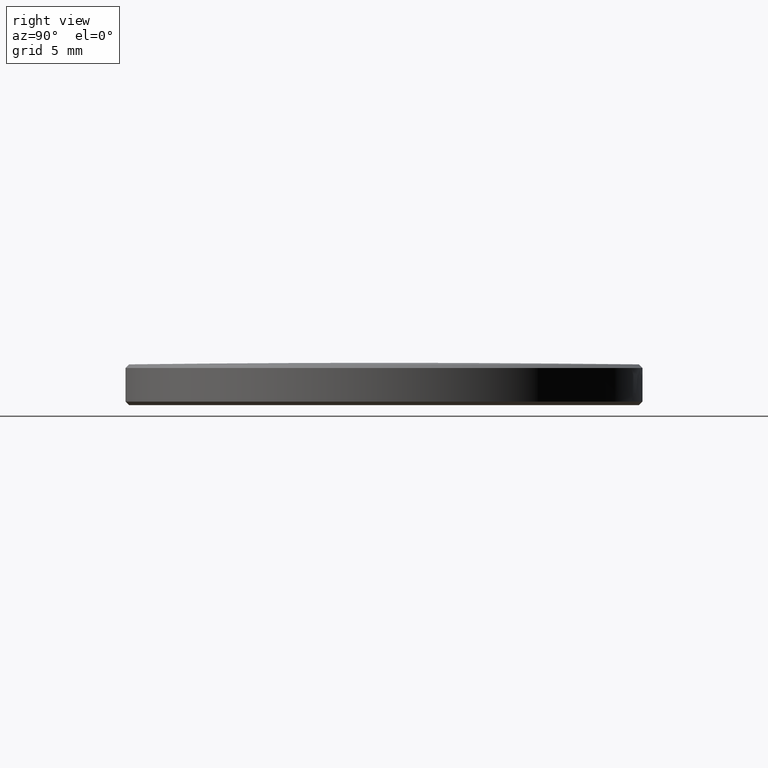
[diagram: clean part render]
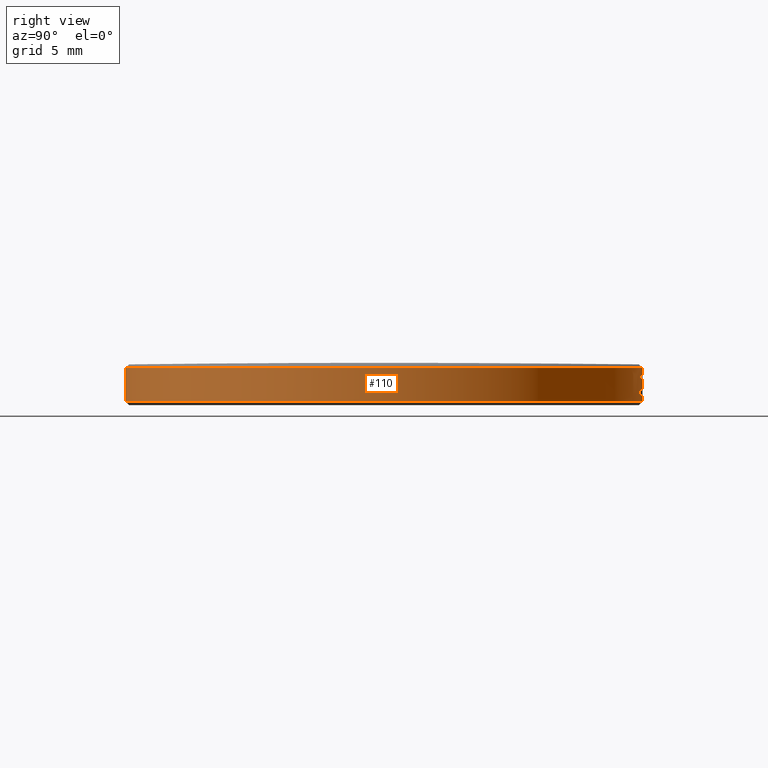
[diagram: same view with one face highlighted and labeled with its STEP entity id]
A machine part, right view. The second image highlights one B-rep face of the part: STEP entity #110.
In plain terms, the highlighted cylindrical surface (partial cylindrical patch) has radius 12.7 mm, axis along (-0, -0, 1).
Its self-contained STEP definition (entity closure, byte-faithful):
#1 = CARTESIAN_POINT ( 'NONE',  ( 0.05897571767777144702, 0.4965096824074952675, -0.02171647052790149496 ) ) ;
#5 = CARTESIAN_POINT ( 'NONE',  ( 0.04195219738416715305, 0.4982369046293538828, -0.02171647052790150537 ) ) ;
#7 = CARTESIAN_POINT ( 'NONE',  ( 0.02553004096687961494, 0.4993478174687158710, -0.0005765629198519137957 ) ) ;
#9 = VERTEX_POINT ( 'NONE', #603 ) ;
#17 = AXIS2_PLACEMENT_3D ( 'NONE', #1784, #2203, #2648 ) ;
#28 = CARTESIAN_POINT ( 'NONE',  ( 0.03620486434838772472, 0.4986874882090844285, 0.007936058931558430396 ) ) ;
#36 = ORIENTED_EDGE ( 'NONE', *, *, #544, .T. ) ;
#37 = VERTEX_POINT ( 'NONE', #1216 ) ;
#39 = B_SPLINE_CURVE_WITH_KNOTS ( 'NONE', 3,
 ( #857, #2132, #1474, #624, #2334, #1024, #614, #376, #2518, #1465, #397, #2326, #1040, #2533, #161 ),
 .UNSPECIFIED., .F., .F.,
 ( 4, 1, 1, 1, 2, 2, 2, 2, 4 ),
 ( 0.0000000000000000000, 0.2499999999999961142, 0.3749999999999944489, 0.4374999999999940603, 0.4687499999999944489, 0.4999999999999947820, 0.6249999999999962252, 0.7499999999999977796, 1.000000000000000000 ),
 .UNSPECIFIED. ) ;
#42 = DIRECTION ( 'NONE',  ( 0.2120162504334271725, 0.9772661405943369184, 1.792775245842172799E-16 ) ) ;
#46 = ORIENTED_EDGE ( 'NONE', *, *, #560, .T. ) ;
#47 = CARTESIAN_POINT ( 'NONE',  ( 0.03253846842176870424, 0.4989410987498059113, 0.01332512531627219089 ) ) ;
#59 = B_SPLINE_CURVE_WITH_KNOTS ( 'NONE', 3,
 ( #929, #2620, #2118, #2344, #764, #174, #297, #1574, #1975, #582 ),
 .UNSPECIFIED., .F., .F.,
 ( 4, 2, 2, 2, 4 ),
 ( 0.0000000000000000000, 0.1893146392059177341, 0.2839719588088766011, 0.3786292784118354682, 0.7572585568236712694 ),
 .UNSPECIFIED. ) ;
#63 = FACE_BOUND ( 'NONE', #1746, .T. ) ;
#70 = EDGE_CURVE ( 'NONE', #251, #610, #294, .T. ) ;
#72 = CARTESIAN_POINT ( 'NONE',  ( 0.1030083598580676663, 0.4892766405425549858, -0.01341986262191859937 ) ) ;
#75 = CARTESIAN_POINT ( 'NONE',  ( 0.009333141817906051574, 0.4999128848747618203, -0.002530564745316026681 ) ) ;
#99 = CARTESIAN_POINT ( 'NONE',  ( 0.006026789751810012093, 0.4999644538465128352, -0.01918418460181730775 ) ) ;
#101 = CARTESIAN_POINT ( 'NONE',  ( 0.04059839222468464293, 0.4983490594575665233, -0.01611479940862103888 ) ) ;
#106 = ORIENTED_EDGE ( 'NONE', *, *, #342, .T. ) ;
#110 = ADVANCED_FACE ( 'NONE', ( #1223, #63, #521, #2415, #1354 ), #1594, .T. ) ;
#113 = CARTESIAN_POINT ( 'NONE',  ( 0.04087030235202229050, 0.4983268538286141358, 0.01050106465941766549 ) ) ;
#120 = DIRECTION ( 'NONE',  ( -0.0000000000000000000, -1.836970198721029688E-16, 1.000000000000000000 ) ) ;
#140 = LINE ( 'NONE', #2756, #664 ) ;
#146 = CARTESIAN_POINT ( 'NONE',  ( 0.08988818067285703206, 0.4918537536456581427, 0.01872949301376516940 ) ) ;
#156 = CARTESIAN_POINT ( 'NONE',  ( 0.05382345581383767702, 0.4970945942215182489, 0.01872949301376517287 ) ) ;
#158 = EDGE_CURVE ( 'NONE', #159, #2338, #657, .T. ) ;
#159 = VERTEX_POINT ( 'NONE', #1140 ) ;
#161 = CARTESIAN_POINT ( 'NONE',  ( 0.03531218405139294886, 0.4987514908825040894, -0.01653109058666217199 ) ) ;
#164 = CARTESIAN_POINT ( 'NONE',  ( 0.07934149889197734951, 0.4936938112673905921, -0.008234482680679279867 ) ) ;
#171 = CARTESIAN_POINT ( 'NONE',  ( 0.03952768365956028929, 0.4984352059452795691, -0.01420834229530199347 ) ) ;
#174 = CARTESIAN_POINT ( 'NONE',  ( 0.003637648741234411360, 0.4999867905026685322, -0.01380340561682351537 ) ) ;
#176 = CARTESIAN_POINT ( 'NONE',  ( 0.01618928721569317178, 0.4997378623885671001, 0.005721306570640861608 ) ) ;
#178 = AXIS2_PLACEMENT_3D ( 'NONE', #524, #2194, #42 ) ;
#179 = EDGE_CURVE ( 'NONE', #1644, #1099, #372, .T. ) ;
#181 = CARTESIAN_POINT ( 'NONE',  ( 0.04127292221850957510, 0.4982936535379370868, -0.01773502390314164040 ) ) ;
#188 = VERTEX_POINT ( 'NONE', #1157 ) ;
#196 = CARTESIAN_POINT ( 'NONE',  ( 0.1311917670490320154, 0.4824818341228532259, -0.01704962858078610741 ) ) ;
#197 = CARTESIAN_POINT ( 'NONE',  ( 0.01796662306187523858, 0.4996774677106256557, 0.0007429942987340864809 ) ) ;
#200 = DIRECTION ( 'NONE',  ( 0.0000000000000000000, 0.0000000000000000000, 1.000000000000000000 ) ) ;
#206 = CARTESIAN_POINT ( 'NONE',  ( 0.02309293371789211680, 0.4994670455884244187, 0.01785726032407731687 ) ) ;
#208 = CIRCLE ( 'NONE', #2423, 0.4999999999999999445 ) ;
#210 = CARTESIAN_POINT ( 'NONE',  ( 0.04141124247600005276, 0.4982821580155102348, -0.01811911319366671380 ) ) ;
#213 = AXIS2_PLACEMENT_3D ( 'NONE', #1954, #1730, #2593 ) ;
#229 = CARTESIAN_POINT ( 'NONE',  ( 0.02692039112504342538, 0.4992751644616937878, -0.001969485479971310946 ) ) ;
#230 = CARTESIAN_POINT ( 'NONE',  ( 0.1119149328904406326, 0.4873141161469962679, -0.02171647052790149496 ) ) ;
#250 = VERTEX_POINT ( 'NONE', #2280 ) ;
#251 = VERTEX_POINT ( 'NONE', #562 ) ;
#253 = CARTESIAN_POINT ( 'NONE',  ( 0.03485908045103085218, 0.4987839151615880984, 0.01150440167166316176 ) ) ;
#257 = ORIENTED_EDGE ( 'NONE', *, *, #1863, .T. ) ;
#258 = DIRECTION ( 'NONE',  ( -0.0000000000000000000, -1.836970198721029688E-16, 1.000000000000000000 ) ) ;
#260 = VERTEX_POINT ( 'NONE', #1829 ) ;
#270 = CARTESIAN_POINT ( 'NONE',  ( 0.03071643536927968349, 0.4990556570204718323, 0.01386097322092220627 ) ) ;
#275 = VECTOR ( 'NONE', #284, 39.37007874015748143 ) ;
#276 = CARTESIAN_POINT ( 'NONE',  ( 0.02125365211503583637, 0.4995480780383135810, 0.007516108890835152684 ) ) ;
#280 = CARTESIAN_POINT ( 'NONE',  ( 0.03585701794586323987, 0.4987126249574139747, 0.009489350774225238302 ) ) ;
#284 = DIRECTION ( 'NONE',  ( -0.0000000000000000000, -1.836970198721029688E-16, 1.000000000000000000 ) ) ;
#294 = B_SPLINE_CURVE_WITH_KNOTS ( 'NONE', 3,
 ( #2121, #1479, #176, #1893, #1908, #2312, #197, #860, #853, #1690, #2760, #628, #2319, #1042, #2538, #1709, #644, #2130, #1061, #1720 ),
 .UNSPECIFIED., .F., .F.,
 ( 4, 2, 2, 1, 1, 2, 2, 1, 2, 2, 1, 4 ),
 ( 0.0000000000000000000, 0.1250000000000000555, 0.2500000000000001110, 0.3750000000000001665, 0.4375000000000000555, 0.4687500000000001665, 0.5000000000000002220, 0.6250000000000016653, 0.6562500000000016653, 0.6875000000000016653, 0.7500000000000013323, 1.000000000000000000 ),
 .UNSPECIFIED. ) ;
#297 = CARTESIAN_POINT ( 'NONE',  ( 0.003466348269066419491, 0.4999880205411793010, -0.01412716194409355079 ) ) ;
#298 = VERTEX_POINT ( 'NONE', #541 ) ;
#306 = DIRECTION ( 'NONE',  ( -0.0000000000000000000, -1.836970198721029688E-16, 1.000000000000000000 ) ) ;
#308 = CARTESIAN_POINT ( 'NONE',  ( 0.02571284738722807994, 0.4993384466077257500, 0.01361805468664486693 ) ) ;
#322 = CARTESIAN_POINT ( 'NONE',  ( 0.004666774186689271083, 0.4999782207443544957, -0.01030863465717499552 ) ) ;
#334 = CARTESIAN_POINT ( 'NONE',  ( 0.03902480764328158935, 0.4984749813805748331, -0.01344807295894865848 ) ) ;
#342 = EDGE_CURVE ( 'NONE', #2338, #2714, #1601, .T. ) ;
#343 = CARTESIAN_POINT ( 'NONE',  ( 0.02850412759699064852, 0.4991868535027083609, 0.01872949301376517633 ) ) ;
#345 = VECTOR ( 'NONE', #200, 39.37007874015748143 ) ;
#348 = CARTESIAN_POINT ( 'NONE',  ( 0.08154193280571284119, 0.4933084900704287623, -0.01756816657491004977 ) ) ;
#356 = EDGE_CURVE ( 'NONE', #2171, #1644, #2576, .T. ) ;
#369 = DIRECTION ( 'NONE',  ( -0.0000000000000000000, -1.836970198721029688E-16, 1.000000000000000000 ) ) ;
#371 = EDGE_CURVE ( 'NONE', #260, #483, #439, .T. ) ;
#372 = LINE ( 'NONE', #1984, #2796 ) ;
#376 = CARTESIAN_POINT ( 'NONE',  ( 0.03139694540498809416, 0.4990132721155449702, -0.01245635810316374562 ) ) ;
#382 = ORIENTED_EDGE ( 'NONE', *, *, #2737, .F. ) ;
#384 = CARTESIAN_POINT ( 'NONE',  ( 0.03400539516490980879, 0.4988428406831130757, 0.01788933683798372629 ) ) ;
#390 = EDGE_LOOP ( 'NONE', ( #382, #1686, #1884, #1743, #1521, #2600 ) ) ;
#394 = ORIENTED_EDGE ( 'NONE', *, *, #1906, .T. ) ;
#395 = CARTESIAN_POINT ( 'NONE',  ( 0.05897571767777155111, 0.4965096824074952120, 0.009800916927443729249 ) ) ;
#397 = CARTESIAN_POINT ( 'NONE',  ( 0.03306883204860817244, 0.4989053695245092568, -0.01394874963763126363 ) ) ;
#406 = CIRCLE ( 'NONE', #1154, 0.5000000000000000000 ) ;
#408 = CARTESIAN_POINT ( 'NONE',  ( 0.03067113568736400120, 0.4990604806407766825, -0.005375296376640254468 ) ) ;
#422 = CARTESIAN_POINT ( 'NONE',  ( 0.05839822083495212202, 0.4965780450053812745, 0.01660011804395156859 ) ) ;
#424 = CARTESIAN_POINT ( 'NONE',  ( 0.01555363028883999590, 0.4997580260334376079, -0.01653109058666217199 ) ) ;
#425 = EDGE_CURVE ( 'NONE', #429, #1261, #2316, .T. ) ;
#429 = VERTEX_POINT ( 'NONE', #727 ) ;
#432 = CARTESIAN_POINT ( 'NONE',  ( 0.007950614753587817093, 0.4999386960141598557, 0.004383275176336394983 ) ) ;
#437 = CARTESIAN_POINT ( 'NONE',  ( 0.02129139088581408906, 0.4995464724136687851, 0.006036876676164090912 ) ) ;
#439 = CIRCLE ( 'NONE', #2497, 0.5000000000000000000 ) ;
#441 = CARTESIAN_POINT ( 'NONE',  ( 0.01763882810688738659, 0.4996891882123979389, 0.01357182136717241007 ) ) ;
#447 = CIRCLE ( 'NONE', #1076, 0.5000000000000000000 ) ;
#448 = CARTESIAN_POINT ( 'NONE',  ( 0.02286712941416273182, 0.4994768281116746533, 0.002641368734649433576 ) ) ;
#453 = CARTESIAN_POINT ( 'NONE',  ( 0.005185286991503857204, 0.4999731120758552083, 0.01821095501964123745 ) ) ;
#459 = CARTESIAN_POINT ( 'NONE',  ( 0.02557383107380910292, 0.4993455621027508284, -0.0006213162569131314063 ) ) ;
#460 = CARTESIAN_POINT ( 'NONE',  ( 0.03541017336920208869, 0.4987446722202744653, 0.01068373456944802721 ) ) ;
#463 = EDGE_CURVE ( 'NONE', #775, #1610, #1034, .T. ) ;
#478 = CARTESIAN_POINT ( 'NONE',  ( 0.03606074021346015318, 0.4986979317014044732, 0.008770303305639036776 ) ) ;
#483 = VERTEX_POINT ( 'NONE', #1248 ) ;
#487 = CARTESIAN_POINT ( 'NONE',  ( 0.03130858157602859487, 0.4990188708520985061, 0.01372449264807138782 ) ) ;
#493 = VERTEX_POINT ( 'NONE', #2525 ) ;
#496 = CARTESIAN_POINT ( 'NONE',  ( 0.03626578605811315442, 0.4986830584264790311, 0.006803119148914753625 ) ) ;
#500 = CARTESIAN_POINT ( 'NONE',  ( 0.02200779094752184153, 0.4995154563388037872, 0.01058979682675512297 ) ) ;
#507 = ORIENTED_EDGE ( 'NONE', *, *, #1921, .T. ) ;
#513 = CARTESIAN_POINT ( 'NONE',  ( 0.02315843335550602997, 0.4994635147813105136, 0.01206395665835536916 ) ) ;
#515 = EDGE_CURVE ( 'NONE', #1074, #2171, #1001, .T. ) ;
#521 = FACE_BOUND ( 'NONE', #2233, .T. ) ;
#523 = CARTESIAN_POINT ( 'NONE',  ( 0.08988818067285703206, 0.4918537536456581427, 0.01872949301376516940 ) ) ;
#524 = CARTESIAN_POINT ( 'NONE',  ( 0.0000000000000000000, 1.158302536164765909E-17, -0.02171647052790158516 ) ) ;
#526 = AXIS2_PLACEMENT_3D ( 'NONE', #691, #898, #706 ) ;
#527 = CARTESIAN_POINT ( 'NONE',  ( 0.02755022889866918373, 0.4992415521829174918, 0.01403679780064001972 ) ) ;
#536 = DIRECTION ( 'NONE',  ( 0.2251720733611321246, 0.9743190121198749276, 1.792775245842172799E-16 ) ) ;
#541 = CARTESIAN_POINT ( 'NONE',  ( 0.1311917670490318766, 0.4824818341228532814, 0.01872949301376516940 ) ) ;
#542 = CARTESIAN_POINT ( 'NONE',  ( 6.123233995736766036E-17, 0.5000000000000000000, -0.01713186965860287458 ) ) ;
#544 = EDGE_CURVE ( 'NONE', #1222, #1074, #2022, .T. ) ;
#555 = B_SPLINE_CURVE_WITH_KNOTS ( 'NONE', 3,
 ( #2480, #348, #1433, #2074 ),
 .UNSPECIFIED., .F., .F.,
 ( 4, 4 ),
 ( 0.0000000000000000000, 1.000000000000000000 ),
 .UNSPECIFIED. ) ;
#558 = CARTESIAN_POINT ( 'NONE',  ( 0.03869399996700029210, 0.4985019798342959496, 0.01483736603731238522 ) ) ;
#560 = EDGE_CURVE ( 'NONE', #2718, #2136, #1439, .T. ) ;
#562 = CARTESIAN_POINT ( 'NONE',  ( 0.01607190888049788227, 0.4997416269883238060, 0.007564721827784269027 ) ) ;
#570 = CIRCLE ( 'NONE', #1541, 0.5000000000000000000 ) ;
#576 = B_SPLINE_CURVE_WITH_KNOTS ( 'NONE', 3,
 ( #2252, #2703, #1628, #322 ),
 .UNSPECIFIED., .F., .F.,
 ( 4, 4 ),
 ( 0.0000000000000000000, 1.000000000000000000 ),
 .UNSPECIFIED. ) ;
#577 = EDGE_LOOP ( 'NONE', ( #1677, #845, #2722, #2532, #2650, #36, #2134 ) ) ;
#582 = CARTESIAN_POINT ( 'NONE',  ( 6.123233995736766036E-17, 0.5000000000000000000, -0.01713186965860287458 ) ) ;
#603 = CARTESIAN_POINT ( 'NONE',  ( 0.004148256362634469667, 0.4999827916730233413, -0.003049102739439950825 ) ) ;
#610 = VERTEX_POINT ( 'NONE', #2625 ) ;
#614 = CARTESIAN_POINT ( 'NONE',  ( 0.03137874394350781415, 0.4990144079482840556, -0.01244070581936791361 ) ) ;
#622 = CARTESIAN_POINT ( 'NONE',  ( 0.06041557456715102026, 0.4963386553431433090, 0.008403776709831259698 ) ) ;
#623 = CARTESIAN_POINT ( 'NONE',  ( 0.03778325844554159679, 0.4985704070010033018, -0.01186477321680292664 ) ) ;
#624 = CARTESIAN_POINT ( 'NONE',  ( 0.03049907241213575121, 0.4990691061392188987, -0.01168559308212298656 ) ) ;
#625 = CARTESIAN_POINT ( 'NONE',  ( 0.07404769955824404282, 0.4944865399483913126, -0.02171647052790149496 ) ) ;
#628 = CARTESIAN_POINT ( 'NONE',  ( 0.02029166545760088466, 0.4995882953359023215, -0.002442174921790586217 ) ) ;
#644 = CARTESIAN_POINT ( 'NONE',  ( 0.02262464216695552963, 0.4994879193256914762, -0.004863119826646492526 ) ) ;
#647 = CARTESIAN_POINT ( 'NONE',  ( 0.1014616635550345397, 0.4896265756255398505, 0.005247505166542948234 ) ) ;
#651 = CARTESIAN_POINT ( 'NONE',  ( 0.03971295080925892756, 0.4984233833919965995, 0.007148811144997369721 ) ) ;
#657 = CIRCLE ( 'NONE', #2092, 0.4999999999999998890 ) ;
#664 = VECTOR ( 'NONE', #1493, 39.37007874015748143 ) ;
#666 = CARTESIAN_POINT ( 'NONE',  ( 0.009333141817906051574, 0.4999128848747618203, -0.002530564745316026681 ) ) ;
#675 = CARTESIAN_POINT ( 'NONE',  ( 0.1066979190084305362, 0.4885122381367921762, -0.008234482680679272928 ) ) ;
#683 = AXIS2_PLACEMENT_3D ( 'NONE', #1659, #1462, #2719 ) ;
#691 = CARTESIAN_POINT ( 'NONE',  ( 0.0000000000000000000, 1.383674879621512820E-17, -0.03398516947651054887 ) ) ;
#692 = EDGE_CURVE ( 'NONE', #1993, #9, #2726, .T. ) ;
#693 = CARTESIAN_POINT ( 'NONE',  ( 0.02472791702604475866, 0.4993885691124710924, 0.0002643765598048721400 ) ) ;
#700 = DIRECTION ( 'NONE',  ( 0.0000000000000000000, 0.0000000000000000000, -1.000000000000000000 ) ) ;
#706 = DIRECTION ( 'NONE',  ( 0.0000000000000000000, -1.000000000000000000, -1.878145495644180839E-16 ) ) ;
#711 = CARTESIAN_POINT ( 'NONE',  ( 0.03337995237472035637, 0.4988850852583939788, 0.01284785574264219431 ) ) ;
#721 = ORIENTED_EDGE ( 'NONE', *, *, #1334, .T. ) ;
#727 = CARTESIAN_POINT ( 'NONE',  ( 0.04141124247600005276, 0.4982821580155102348, -0.01811911319366671380 ) ) ;
#743 = CARTESIAN_POINT ( 'NONE',  ( 6.123233995736766036E-17, 0.5000000000000000000, 0.04094488188976387610 ) ) ;
#746 = ORIENTED_EDGE ( 'NONE', *, *, #371, .F. ) ;
#749 = CARTESIAN_POINT ( 'NONE',  ( 0.02861737257802509163, 0.4991803742002789424, 0.01406265106664978878 ) ) ;
#750 = ORIENTED_EDGE ( 'NONE', *, *, #1484, .T. ) ;
#752 = B_SPLINE_CURVE_WITH_KNOTS ( 'NONE', 3,
 ( #395, #622, #1246, #2314, #2158, #2772 ),
 .UNSPECIFIED., .F., .F.,
 ( 4, 2, 4 ),
 ( 0.0000000000000000000, 0.5000000000000000000, 1.000000000000000000 ),
 .UNSPECIFIED. ) ;
#759 = CARTESIAN_POINT ( 'NONE',  ( 0.02223942344522563189, 0.4995052413053057694, 0.01096875718778107106 ) ) ;
#761 = LINE ( 'NONE', #1, #345 ) ;
#764 = CARTESIAN_POINT ( 'NONE',  ( 0.003942044490540314548, 0.4999844832099876180, -0.01312052901238786561 ) ) ;
#768 = CARTESIAN_POINT ( 'NONE',  ( 0.005876656855238569267, 0.4999684514828007242, -0.002876256741398640175 ) ) ;
#775 = VERTEX_POINT ( 'NONE', #888 ) ;
#782 = CARTESIAN_POINT ( 'NONE',  ( 0.04118798843152824546, 0.4983006629288025402, 0.009061961829742904914 ) ) ;
#789 = CARTESIAN_POINT ( 'NONE',  ( 0.009177082990517917288, 0.4999157849335237880, -0.01414582865751719092 ) ) ;
#791 = VERTEX_POINT ( 'NONE', #2579 ) ;
#794 = CARTESIAN_POINT ( 'NONE',  ( 0.03689313679913702737, 0.4986374021673061208, 0.01637392848351634789 ) ) ;
#799 = CARTESIAN_POINT ( 'NONE',  ( 0.0000000000000000000, 1.158302536164765909E-17, -0.02171647052790158516 ) ) ;
#800 = VERTEX_POINT ( 'NONE', #1111 ) ;
#803 = LINE ( 'NONE', #1131, #2384 ) ;
#822 = VERTEX_POINT ( 'NONE', #2607 ) ;
#835 = DIRECTION ( 'NONE',  ( -0.0000000000000000000, -1.836970198721029688E-16, 1.000000000000000000 ) ) ;
#839 = CARTESIAN_POINT ( 'NONE',  ( 0.02947005417176439337, 0.4991316980150520277, 0.01870944735052014127 ) ) ;
#845 = ORIENTED_EDGE ( 'NONE', *, *, #179, .T. ) ;
#848 = VERTEX_POINT ( 'NONE', #2667 ) ;
#853 = CARTESIAN_POINT ( 'NONE',  ( 0.01924201509310704411, 0.4996296280291436243, -0.001109205975397337812 ) ) ;
#857 = CARTESIAN_POINT ( 'NONE',  ( 0.02728260755614764568, 0.4992551044555650908, -0.009028493984181542101 ) ) ;
#860 = CARTESIAN_POINT ( 'NONE',  ( 0.01882890278187111452, 0.4996454725853811119, -0.0005481874890623160369 ) ) ;
#861 = EDGE_CURVE ( 'NONE', #2052, #37, #2507, .T. ) ;
#866 = CIRCLE ( 'NONE', #526, 0.5000000000000000000 ) ;
#867 = CARTESIAN_POINT ( 'NONE',  ( 0.006567980616312984327, 0.4999587719781724005, 0.01129711509798881838 ) ) ;
#873 = EDGE_CURVE ( 'NONE', #848, #2216, #2477, .T. ) ;
#887 = B_SPLINE_CURVE_WITH_KNOTS ( 'NONE', 3,
 ( #1590, #72, #1831, #2494 ),
 .UNSPECIFIED., .F., .F.,
 ( 4, 4 ),
 ( 0.0000000000000000000, 1.000000000000000000 ),
 .UNSPECIFIED. ) ;
#888 = CARTESIAN_POINT ( 'NONE',  ( 0.04143546538618893271, 0.4982801443046169787, 0.007321657143038677769 ) ) ;
#890 = ORIENTED_EDGE ( 'NONE', *, *, #2024, .T. ) ;
#898 = DIRECTION ( 'NONE',  ( -0.0000000000000000000, -1.836970198721029688E-16, 1.000000000000000000 ) ) ;
#903 = LINE ( 'NONE', #1905, #2584 ) ;
#908 = DIRECTION ( 'NONE',  ( -0.0000000000000000000, -1.836970198721029688E-16, 1.000000000000000000 ) ) ;
#923 = CARTESIAN_POINT ( 'NONE',  ( 0.02861737257802509163, 0.4991803742002789424, 0.01406265106664978878 ) ) ;
#929 = CARTESIAN_POINT ( 'NONE',  ( 0.004666774186689271083, 0.4999782207443544957, -0.01030863465717499552 ) ) ;
#942 = CARTESIAN_POINT ( 'NONE',  ( 0.03211103672720891367, 0.4989678159163212223, -0.006589744980567424811 ) ) ;
#945 = CARTESIAN_POINT ( 'NONE',  ( 0.02383777948038876340, 0.4994315527703733770, 0.01265491506839397720 ) ) ;
#953 = ORIENTED_EDGE ( 'NONE', *, *, #2119, .T. ) ;
#977 = CARTESIAN_POINT ( 'NONE',  ( 0.1015062956179794140, 0.4895880635288358262, -0.009271558668927148972 ) ) ;
#987 = CARTESIAN_POINT ( 'NONE',  ( 0.04114602911119961959, 0.4983041417755268987, -0.01739738047199089824 ) ) ;
#991 = VECTOR ( 'NONE', #700, 39.37007874015748143 ) ;
#994 = CARTESIAN_POINT ( 'NONE',  ( 0.009449406616696598774, 0.4999107053496816833, -0.01321600253971519368 ) ) ;
#1001 = B_SPLINE_CURVE_WITH_KNOTS ( 'NONE', 3,
 ( #2160, #1950, #1091, #1269, #2765, #1913, #2361, #1526, #422, #2551, #1924, #1072, #2774, #1082 ),
 .UNSPECIFIED., .F., .F.,
 ( 4, 2, 2, 2, 2, 2, 4 ),
 ( 0.0000000000000000000, 0.2500000000000002776, 0.5000000000000005551, 0.7500000000000008882, 0.8750000000000004441, 0.9375000000000002220, 1.000000000000000000 ),
 .UNSPECIFIED. ) ;
#1005 = CARTESIAN_POINT ( 'NONE',  ( 0.004939748570046890649, 0.4999769536647054591, -0.02006584520776499847 ) ) ;
#1016 = AXIS2_PLACEMENT_3D ( 'NONE', #2104, #835, #1036 ) ;
#1019 = CARTESIAN_POINT ( 'NONE',  ( 0.003023289364590203265, 0.4999921252972702179, -0.001411026575421898402 ) ) ;
#1021 = EDGE_CURVE ( 'NONE', #2365, #1673, #570, .T. ) ;
#1024 = CARTESIAN_POINT ( 'NONE',  ( 0.03123885554600254813, 0.4990231846473914268, -0.01231966220811542452 ) ) ;
#1034 = B_SPLINE_CURVE_WITH_KNOTS ( 'NONE', 3,
 ( #2466, #1472, #2699, #782, #1426, #1693, #113, #2543, #1631, #558, #794, #1643, #1835, #384, #2053, #2111, #2679, #839, #343 ),
 .UNSPECIFIED., .F., .F.,
 ( 4, 1, 2, 2, 2, 2, 2, 2, 2, 4 ),
 ( 0.0000000000000000000, 0.06249999999999986122, 0.09374999999999970857, 0.1249999999999995559, 0.2499999999999997224, 0.5000000000000006661, 0.6250000000000004441, 0.7500000000000003331, 0.8750000000000001110, 1.000000000000000000 ),
 .UNSPECIFIED. ) ;
#1036 = DIRECTION ( 'NONE',  ( 0.1076469116276753540, 0.9941891884430364978, 1.835460370743176819E-16 ) ) ;
#1039 = ORIENTED_EDGE ( 'NONE', *, *, #1437, .T. ) ;
#1040 = CARTESIAN_POINT ( 'NONE',  ( 0.03405465754054051719, 0.4988391900875184248, -0.01492825536054280880 ) ) ;
#1042 = CARTESIAN_POINT ( 'NONE',  ( 0.02181310563234381203, 0.4995239912977597618, -0.004063054185884403327 ) ) ;
#1044 = ORIENTED_EDGE ( 'NONE', *, *, #1822, .F. ) ;
#1061 = CARTESIAN_POINT ( 'NONE',  ( 0.02561798974720763677, 0.4993460702043515664, -0.007605182084080188386 ) ) ;
#1072 = CARTESIAN_POINT ( 'NONE',  ( 0.05750912442997622998, 0.4966817118929672259, 0.01803540906936071039 ) ) ;
#1074 = VERTEX_POINT ( 'NONE', #1420 ) ;
#1076 = AXIS2_PLACEMENT_3D ( 'NONE', #1600, #306, #536 ) ;
#1082 = CARTESIAN_POINT ( 'NONE',  ( 0.05714092300850921041, 0.4967241839469220266, 0.01872949301376517287 ) ) ;
#1088 = EDGE_CURVE ( 'NONE', #822, #250, #576, .T. ) ;
#1091 = CARTESIAN_POINT ( 'NONE',  ( 0.06574434259342938625, 0.4956596545226124584, 0.009974825549664625979 ) ) ;
#1099 = VERTEX_POINT ( 'NONE', #2242 ) ;
#1111 = CARTESIAN_POINT ( 'NONE',  ( 0.1366871847702164910, 0.4809538579942911340, 0.01872949301376516940 ) ) ;
#1114 = VERTEX_POINT ( 'NONE', #2261 ) ;
#1117 = CARTESIAN_POINT ( 'NONE',  ( 0.02920942771358001760, 0.4991464324363862892, 0.01404898641496462111 ) ) ;
#1121 = CARTESIAN_POINT ( 'NONE',  ( 0.02861737257802509163, 0.4991803742002789424, 0.01406265106664978878 ) ) ;
#1124 = VERTEX_POINT ( 'NONE', #1192 ) ;
#1131 = CARTESIAN_POINT ( 'NONE',  ( 0.01555363028883999590, 0.4997580260334376079, -0.01653109058666217199 ) ) ;
#1132 = CARTESIAN_POINT ( 'NONE',  ( 0.0000000000000000000, 9.296932140583076005E-18, -0.009271558668927228769 ) ) ;
#1138 = EDGE_CURVE ( 'NONE', #1546, #1099, #406, .T. ) ;
#1140 = CARTESIAN_POINT ( 'NONE',  ( 0.09620886670672973429, 0.4906565539835441303, 0.01872949301376516940 ) ) ;
#1143 = CARTESIAN_POINT ( 'NONE',  ( 0.03115471106202863383, 0.4990284883496847179, 0.01376329757553023184 ) ) ;
#1147 = CARTESIAN_POINT ( 'NONE',  ( 0.02125365211503583637, 0.4995480780383135810, 0.007516108890835152684 ) ) ;
#1150 = CARTESIAN_POINT ( 'NONE',  ( 6.123233995736766036E-17, 0.5000000000000000000, 0.04094488188976387610 ) ) ;
#1153 = CIRCLE ( 'NONE', #683, 0.4999999999999999445 ) ;
#1154 = AXIS2_PLACEMENT_3D ( 'NONE', #799, #120, #1647 ) ;
#1157 = CARTESIAN_POINT ( 'NONE',  ( 0.05897571767777155111, 0.4965096824074952120, 0.009800916927443729249 ) ) ;
#1163 = ORIENTED_EDGE ( 'NONE', *, *, #861, .F. ) ;
#1178 = EDGE_CURVE ( 'NONE', #2267, #775, #2043, .T. ) ;
#1182 = VERTEX_POINT ( 'NONE', #542 ) ;
#1188 = EDGE_CURVE ( 'NONE', #2136, #2390, #1792, .T. ) ;
#1192 = CARTESIAN_POINT ( 'NONE',  ( 0.0000000000000000000, -0.5000000000000000000, -0.03398516947651064601 ) ) ;
#1193 = CARTESIAN_POINT ( 'NONE',  ( 0.007789919203375098196, 0.4999400908744559002, -0.01716412934413052288 ) ) ;
#1194 = VERTEX_POINT ( 'NONE', #424 ) ;
#1200 = CARTESIAN_POINT ( 'NONE',  ( 0.04016838740435881711, 0.4983839109533324541, -0.01529625179103126335 ) ) ;
#1205 = CARTESIAN_POINT ( 'NONE',  ( 0.009764464344470777032, 0.4999046537379999156, -0.01161187910653589325 ) ) ;
#1216 = CARTESIAN_POINT ( 'NONE',  ( 6.123233995736766036E-17, 0.5000000000000000000, 0.03099819180653418105 ) ) ;
#1218 = CIRCLE ( 'NONE', #1862, 0.5000000000000000000 ) ;
#1222 = VERTEX_POINT ( 'NONE', #2381 ) ;
#1223 = FACE_BOUND ( 'NONE', #577, .T. ) ;
#1231 = EDGE_CURVE ( 'NONE', #1124, #1114, #866, .T. ) ;
#1246 = CARTESIAN_POINT ( 'NONE',  ( 0.06168742239364859853, 0.4961828795238608647, 0.007454333239505077716 ) ) ;
#1248 = CARTESIAN_POINT ( 'NONE',  ( 0.01555363028883999590, 0.4997580260334376079, -0.02171647052790149149 ) ) ;
#1252 = EDGE_CURVE ( 'NONE', #298, #1847, #1992, .T. ) ;
#1261 = VERTEX_POINT ( 'NONE', #942 ) ;
#1265 = CARTESIAN_POINT ( 'NONE',  ( 0.08002770095699333897, 0.4935540163746396369, -0.02171647052790150537 ) ) ;
#1269 = CARTESIAN_POINT ( 'NONE',  ( 0.06395767023687221053, 0.4958933636603632955, 0.01115265932558395616 ) ) ;
#1272 = VERTEX_POINT ( 'NONE', #1147 ) ;
#1290 = CARTESIAN_POINT ( 'NONE',  ( 5.053215498074302889E-16, 0.5000000000000000000, -0.02201199468813766491 ) ) ;
#1294 = CARTESIAN_POINT ( 'NONE',  ( 0.05714092300850921041, 0.4967241839469220266, 0.01872949301376517287 ) ) ;
#1298 = CARTESIAN_POINT ( 'NONE',  ( 0.01610422840715044004, 0.4997405875782379714, 0.009303139283232860976 ) ) ;
#1304 = EDGE_CURVE ( 'NONE', #1114, #1432, #2488, .T. ) ;
#1306 = CARTESIAN_POINT ( 'NONE',  ( 0.02125365211503583637, 0.4995480780383135810, 0.007516108890835152684 ) ) ;
#1309 = CARTESIAN_POINT ( 'NONE',  ( 0.01855517913494701687, 0.4996571099381273973, 0.01478292622217200827 ) ) ;
#1326 = CARTESIAN_POINT ( 'NONE',  ( 0.02938923552363285549, 0.4991367943253540718, -0.004252957911622759837 ) ) ;
#1328 = DIRECTION ( 'NONE',  ( -0.0000000000000000000, -1.836970198721029688E-16, 1.000000000000000000 ) ) ;
#1332 = DIRECTION ( 'NONE',  ( -0.02799739274719525994, 0.9996079961661767932, 1.835460370743176819E-16 ) ) ;
#1334 = EDGE_CURVE ( 'NONE', #1272, #2759, #2097, .T. ) ;
#1335 = DIRECTION ( 'NONE',  ( 0.03110726057767999181, 0.9995160520668752158, 1.835460370743176819E-16 ) ) ;
#1337 = CARTESIAN_POINT ( 'NONE',  ( 0.03612158295981026529, 0.4986935251426173332, 0.008465719113495369375 ) ) ;
#1354 = FACE_OUTER_BOUND ( 'NONE', #2051, .T. ) ;
#1359 = DIRECTION ( 'NONE',  ( 0.0000000000000000000, 0.0000000000000000000, -1.000000000000000000 ) ) ;
#1361 = B_SPLINE_CURVE_WITH_KNOTS ( 'NONE', 3,
 ( #2048, #768, #2038, #75 ),
 .UNSPECIFIED., .F., .F.,
 ( 4, 4 ),
 ( 0.0000000000000000000, 1.000000000000000000 ),
 .UNSPECIFIED. ) ;
#1376 = CARTESIAN_POINT ( 'NONE',  ( 0.07404769955824404282, 0.4944865399483913126, -0.02171647052790149496 ) ) ;
#1377 = ORIENTED_EDGE ( 'NONE', *, *, #2547, .T. ) ;
#1385 = EDGE_CURVE ( 'NONE', #188, #1222, #752, .T. ) ;
#1386 = CARTESIAN_POINT ( 'NONE',  ( 0.009333141817906051574, 0.4999128848747618203, -0.002530564745316026681 ) ) ;
#1396 = B_SPLINE_CURVE_WITH_KNOTS ( 'NONE', 3,
 ( #230, #675, #647, #1744 ),
 .UNSPECIFIED., .F., .F.,
 ( 4, 4 ),
 ( 0.0000000000000000000, 1.000000000000000000 ),
 .UNSPECIFIED. ) ;
#1401 = B_SPLINE_CURVE_WITH_KNOTS ( 'NONE', 3,
 ( #1719, #408, #1326, #1936, #229, #1945, #1741, #459, #7, #693, #1542, #1759, #448, #2802, #1729, #1962, #437, #1306 ),
 .UNSPECIFIED., .F., .F.,
 ( 4, 2, 1, 1, 2, 2, 1, 1, 2, 2, 4 ),
 ( 0.0000000000000000000, 0.2500000000000018319, 0.3750000000000029976, 0.4375000000000034972, 0.4687500000000034972, 0.5000000000000034417, 0.6250000000000026645, 0.6875000000000021094, 0.7187500000000019984, 0.7500000000000018874, 1.000000000000000000 ),
 .UNSPECIFIED. ) ;
#1403 = CARTESIAN_POINT ( 'NONE',  ( 0.03998195209290206220, 0.4983989030707649537, -0.01496978011143513913 ) ) ;
#1405 = CARTESIAN_POINT ( 'NONE',  ( 0.0000000000000000000, 1.158302536164765909E-17, -0.02171647052790158516 ) ) ;
#1409 = ORIENTED_EDGE ( 'NONE', *, *, #1088, .T. ) ;
#1414 = CARTESIAN_POINT ( 'NONE',  ( 0.04083853566268929453, 0.4983294377401337183, -0.01662905611739543335 ) ) ;
#1420 = CARTESIAN_POINT ( 'NONE',  ( 0.06823343288345441737, 0.4953223179273664178, 0.008618002128348505042 ) ) ;
#1423 = EDGE_CURVE ( 'NONE', #1546, #188, #761, .T. ) ;
#1426 = CARTESIAN_POINT ( 'NONE',  ( 0.04112290094312068961, 0.4983060385790464841, 0.009403925351864758295 ) ) ;
#1432 = VERTEX_POINT ( 'NONE', #1290 ) ;
#1433 = CARTESIAN_POINT ( 'NONE',  ( 0.08305503472815863042, 0.4930559951846870681, -0.01341986262191859416 ) ) ;
#1437 = EDGE_CURVE ( 'NONE', #1610, #251, #2269, .T. ) ;
#1439 = B_SPLINE_CURVE_WITH_KNOTS ( 'NONE', 3,
 ( #666, #432, #867, #2575 ),
 .UNSPECIFIED., .F., .F.,
 ( 4, 4 ),
 ( 0.0000000000000000000, 1.000000000000000000 ),
 .UNSPECIFIED. ) ;
#1457 = VECTOR ( 'NONE', #1510, 39.37007874015748143 ) ;
#1462 = DIRECTION ( 'NONE',  ( -0.0000000000000000000, -1.836970198721029688E-16, 1.000000000000000000 ) ) ;
#1465 = CARTESIAN_POINT ( 'NONE',  ( 0.03239089698402131123, 0.4989498423549371675, -0.01332939242538021957 ) ) ;
#1472 = CARTESIAN_POINT ( 'NONE',  ( 0.04137609910077544306, 0.4982850810248384832, 0.007829154264368008015 ) ) ;
#1474 = CARTESIAN_POINT ( 'NONE',  ( 0.02933764783653200828, 0.4991393973267184703, -0.01070799264973619144 ) ) ;
#1479 = CARTESIAN_POINT ( 'NONE',  ( 0.01609841328374242778, 0.4997407745951452651, 0.006591663409903876676 ) ) ;
#1484 = EDGE_CURVE ( 'NONE', #848, #159, #1396, .T. ) ;
#1493 = DIRECTION ( 'NONE',  ( 0.0000000000000000000, 0.0000000000000000000, -1.000000000000000000 ) ) ;
#1494 = DIRECTION ( 'NONE',  ( 0.03110726057767999181, 0.9995160520668752158, 1.878145495644180839E-16 ) ) ;
#1499 = LINE ( 'NONE', #1150, #1699 ) ;
#1509 = CARTESIAN_POINT ( 'NONE',  ( 0.02543949824421480599, 0.4993548686006726300, 0.01856720777732477623 ) ) ;
#1510 = DIRECTION ( 'NONE',  ( 0.0000000000000000000, 0.0000000000000000000, 1.000000000000000000 ) ) ;
#1513 = ORIENTED_EDGE ( 'NONE', *, *, #2490, .T. ) ;
#1516 = CARTESIAN_POINT ( 'NONE',  ( 0.02850412759699064852, 0.4991868535027083609, 0.01872949301376517633 ) ) ;
#1521 = ORIENTED_EDGE ( 'NONE', *, *, #2341, .T. ) ;
#1523 = EDGE_CURVE ( 'NONE', #2759, #2267, #1849, .T. ) ;
#1526 = CARTESIAN_POINT ( 'NONE',  ( 0.05883062970753596965, 0.4965270556865881701, 0.01603507328316117198 ) ) ;
#1528 = CARTESIAN_POINT ( 'NONE',  ( 0.1060081252167137111, 0.4886330702971684592, -0.02171647052790150537 ) ) ;
#1536 = EDGE_CURVE ( 'NONE', #1194, #483, #803, .T. ) ;
#1541 = AXIS2_PLACEMENT_3D ( 'NONE', #1132, #1328, #1976 ) ;
#1542 = CARTESIAN_POINT ( 'NONE',  ( 0.02389273204201468326, 0.4994291728479799963, 0.001216839726059392454 ) ) ;
#1546 = VERTEX_POINT ( 'NONE', #1963 ) ;
#1563 = CARTESIAN_POINT ( 'NONE',  ( 0.03626578605811315442, 0.4986830584264790311, 0.006803119148914753625 ) ) ;
#1574 = CARTESIAN_POINT ( 'NONE',  ( 0.002514331292099679805, 0.4999942581853341061, -0.01565753370570480835 ) ) ;
#1587 = EDGE_CURVE ( 'NONE', #2365, #2216, #887, .T. ) ;
#1588 = DIRECTION ( 'NONE',  ( -0.0000000000000000000, -1.836970198721029688E-16, 1.000000000000000000 ) ) ;
#1589 = ORIENTED_EDGE ( 'NONE', *, *, #1304, .T. ) ;
#1590 = CARTESIAN_POINT ( 'NONE',  ( 0.1015062956179794140, 0.4895880635288358262, -0.009271558668927148972 ) ) ;
#1594 = CYLINDRICAL_SURFACE ( 'NONE', #213, 0.5000000000000000000 ) ;
#1600 = CARTESIAN_POINT ( 'NONE',  ( 0.0000000000000000000, 1.072574040374843947E-17, -0.01704962858078619761 ) ) ;
#1601 = B_SPLINE_CURVE_WITH_KNOTS ( 'NONE', 3,
 ( #146, #2303, #164, #625 ),
 .UNSPECIFIED., .F., .F.,
 ( 4, 4 ),
 ( 0.0000000000000000000, 1.000000000000000000 ),
 .UNSPECIFIED. ) ;
#1603 = CARTESIAN_POINT ( 'NONE',  ( 0.02501560363338889079, 0.4993738739720214315, 0.01334172903551881541 ) ) ;
#1604 = DIRECTION ( 'NONE',  ( -0.0000000000000000000, -1.836970198721029688E-16, 1.000000000000000000 ) ) ;
#1610 = VERTEX_POINT ( 'NONE', #1888 ) ;
#1619 = VERTEX_POINT ( 'NONE', #2473 ) ;
#1626 = DIRECTION ( 'NONE',  ( 0.2251720733611321246, 0.9743190121198749276, 1.792775245842172799E-16 ) ) ;
#1628 = CARTESIAN_POINT ( 'NONE',  ( 0.006395158877958816504, 0.4999620880795158651, -0.01048148065521630444 ) ) ;
#1631 = CARTESIAN_POINT ( 'NONE',  ( 0.03965143262257612294, 0.4984257197206755086, 0.01353245199490019784 ) ) ;
#1638 = CARTESIAN_POINT ( 'NONE',  ( 0.009851584355071080212, 0.4999029368644426485, -0.01082717265129892747 ) ) ;
#1639 = CARTESIAN_POINT ( 'NONE',  ( 0.08456694263428950198, 0.4927965424122705551, -0.009271558668927138563 ) ) ;
#1642 = EDGE_CURVE ( 'NONE', #800, #298, #1153, .T. ) ;
#1643 = CARTESIAN_POINT ( 'NONE',  ( 0.03624087657365404613, 0.4986853691287359003, 0.01681687820320678511 ) ) ;
#1644 = VERTEX_POINT ( 'NONE', #156 ) ;
#1647 = DIRECTION ( 'NONE',  ( 0.1076469116276753540, 0.9941891884430364978, 1.792775245842172799E-16 ) ) ;
#1659 = CARTESIAN_POINT ( 'NONE',  ( 0.0000000000000000000, 4.153222393187763672E-18, 0.01872949301376507919 ) ) ;
#1673 = VERTEX_POINT ( 'NONE', #1639 ) ;
#1677 = ORIENTED_EDGE ( 'NONE', *, *, #356, .T. ) ;
#1685 = CARTESIAN_POINT ( 'NONE',  ( 0.03844898695082062806, 0.4985195238473016377, -0.01268955634226506639 ) ) ;
#1686 = ORIENTED_EDGE ( 'NONE', *, *, #2084, .T. ) ;
#1690 = CARTESIAN_POINT ( 'NONE',  ( 0.01952710313468719941, 0.4996185671014952145, -0.001484919380285955413 ) ) ;
#1693 = CARTESIAN_POINT ( 'NONE',  ( 0.04110290320274982007, 0.4983076896126753530, 0.009505365677876503189 ) ) ;
#1699 = VECTOR ( 'NONE', #1785, 39.37007874015748143 ) ;
#1700 = DIRECTION ( 'NONE',  ( -0.0000000000000000000, -1.836970198721029688E-16, 1.000000000000000000 ) ) ;
#1709 = CARTESIAN_POINT ( 'NONE',  ( 0.02227007933934897072, 0.4995038113594250651, -0.004517735747066875529 ) ) ;
#1718 = CARTESIAN_POINT ( 'NONE',  ( 0.04143546538618893271, 0.4982801443046169787, 0.007321657143038677769 ) ) ;
#1719 = CARTESIAN_POINT ( 'NONE',  ( 0.03211103672720891367, 0.4989678159163212223, -0.006589744980567424811 ) ) ;
#1720 = CARTESIAN_POINT ( 'NONE',  ( 0.02728260755614764568, 0.4992551044555650908, -0.009028493984181542101 ) ) ;
#1723 = CARTESIAN_POINT ( 'NONE',  ( 0.02236122036185203207, 0.4995001909237827831, 0.01755289309094325984 ) ) ;
#1727 = CARTESIAN_POINT ( 'NONE',  ( 0.1125860366805660623, 0.4871595060599374638, -0.01704962858078610741 ) ) ;
#1729 = CARTESIAN_POINT ( 'NONE',  ( 0.02264103622795694479, 0.4994871309432183937, 0.002997950823340917240 ) ) ;
#1730 = DIRECTION ( 'NONE',  ( -0.0000000000000000000, -1.836970198721029688E-16, 1.000000000000000000 ) ) ;
#1741 = CARTESIAN_POINT ( 'NONE',  ( 0.02578547122440382616, 0.4993346780479395730, -0.0008385751526671001398 ) ) ;
#1743 = ORIENTED_EDGE ( 'NONE', *, *, #1252, .T. ) ;
#1744 = CARTESIAN_POINT ( 'NONE',  ( 0.09620886670672973429, 0.4906565539835441303, 0.01872949301376516940 ) ) ;
#1746 = EDGE_LOOP ( 'NONE', ( #1973, #394, #2425, #746, #953, #1937, #2199, #721, #2493, #2000, #2391, #1039, #2537 ) ) ;
#1747 = CARTESIAN_POINT ( 'NONE',  ( 0.04182985169733022257, 0.4982473682328774078, -0.01942858939647913383 ) ) ;
#1759 = CARTESIAN_POINT ( 'NONE',  ( 0.02314135380935176262, 0.4994642537159543760, 0.002228884387022511682 ) ) ;
#1762 = CARTESIAN_POINT ( 'NONE',  ( 0.04195542951177456958, 0.4982366324799925583, -0.02033348733749298226 ) ) ;
#1781 = EDGE_CURVE ( 'NONE', #1820, #2714, #208, .T. ) ;
#1784 = CARTESIAN_POINT ( 'NONE',  ( 0.0000000000000000000, 1.899498987247631183E-18, 0.03099819180653408737 ) ) ;
#1785 = DIRECTION ( 'NONE',  ( -0.0000000000000000000, -1.836970198721029688E-16, 1.000000000000000000 ) ) ;
#1786 = CARTESIAN_POINT ( 'NONE',  ( 0.03624367827732873776, 0.4986846661731924590, 0.007440710074691217306 ) ) ;
#1792 = CIRCLE ( 'NONE', #2023, 0.5000000000000000000 ) ;
#1793 = CARTESIAN_POINT ( 'NONE',  ( 0.02127897424886077138, 0.4995470006889117243, 0.008536499405850063102 ) ) ;
#1806 = EDGE_CURVE ( 'NONE', #1261, #1272, #1401, .T. ) ;
#1816 = CARTESIAN_POINT ( 'NONE',  ( 0.02664408386725291081, 0.4992901454033347175, 0.01390792360163791395 ) ) ;
#1820 = VERTEX_POINT ( 'NONE', #1265 ) ;
#1821 = CARTESIAN_POINT ( 'NONE',  ( 0.002611457786137581002, 0.4999945355701455596, -0.02135689723271697732 ) ) ;
#1822 = EDGE_CURVE ( 'NONE', #1124, #2052, #2064, .T. ) ;
#1829 = CARTESIAN_POINT ( 'NONE',  ( 0.04195219738416715305, 0.4982369046293538828, -0.02171647052790150537 ) ) ;
#1831 = CARTESIAN_POINT ( 'NONE',  ( 0.1045089909115844290, 0.4889583049707818541, -0.01756816657491005323 ) ) ;
#1835 = CARTESIAN_POINT ( 'NONE',  ( 0.03483233168364755633, 0.4987857327423980691, 0.01756430211783260170 ) ) ;
#1843 = CARTESIAN_POINT ( 'NONE',  ( 6.123233995736766036E-17, 0.5000000000000000000, 0.01821095501964123745 ) ) ;
#1845 = CARTESIAN_POINT ( 'NONE',  ( 0.03211103672720891367, 0.4989678159163212223, -0.006589744980567424811 ) ) ;
#1847 = VERTEX_POINT ( 'NONE', #196 ) ;
#1849 = B_SPLINE_CURVE_WITH_KNOTS ( 'NONE', 3,
 ( #923, #1117, #2200, #270, #1143, #487, #47, #711, #253, #460, #280, #2611, #478, #1337, #28, #1786, #496 ),
 .UNSPECIFIED., .F., .F.,
 ( 4, 1, 2, 2, 2, 2, 2, 2, 4 ),
 ( 0.0000000000000000000, 0.1250000000000023315, 0.1875000000000034972, 0.2500000000000046629, 0.5000000000000033307, 0.7500000000000021094, 0.8125000000000015543, 0.8750000000000011102, 1.000000000000000000 ),
 .UNSPECIFIED. ) ;
#1853 = CARTESIAN_POINT ( 'NONE',  ( 0.001389081801219563045, 0.5000000000000001110, -0.02177060260030255073 ) ) ;
#1862 = AXIS2_PLACEMENT_3D ( 'NONE', #2609, #258, #1335 ) ;
#1863 = EDGE_CURVE ( 'NONE', #2390, #37, #1499, .T. ) ;
#1876 = CARTESIAN_POINT ( 'NONE',  ( 0.004148256362634469667, 0.4999827916730233413, -0.003049102739439950825 ) ) ;
#1884 = ORIENTED_EDGE ( 'NONE', *, *, #1642, .T. ) ;
#1886 = CARTESIAN_POINT ( 'NONE',  ( 0.001728223463560034194, 0.5000000000000000000, -0.0003342214362629566927 ) ) ;
#1888 = CARTESIAN_POINT ( 'NONE',  ( 0.02850412759699064852, 0.4991868535027083609, 0.01872949301376517633 ) ) ;
#1893 = CARTESIAN_POINT ( 'NONE',  ( 0.01649976727663252096, 0.4997277076619461855, 0.004185996049349581700 ) ) ;
#1903 = CARTESIAN_POINT ( 'NONE',  ( 0.03804889237007177266, 0.4985502201823759361, -0.01218426809106926481 ) ) ;
#1905 = CARTESIAN_POINT ( 'NONE',  ( 0.1366871847702163523, 0.4809538579942910230, -0.02171647052790149496 ) ) ;
#1906 = EDGE_CURVE ( 'NONE', #1619, #1194, #1218, .T. ) ;
#1908 = CARTESIAN_POINT ( 'NONE',  ( 0.01680369884420805648, 0.4997176455214683011, 0.003226695195741333642 ) ) ;
#1913 = CARTESIAN_POINT ( 'NONE',  ( 0.06095910277786986686, 0.4962710139005199750, 0.01366392535661804103 ) ) ;
#1921 = EDGE_CURVE ( 'NONE', #250, #1182, #59, .T. ) ;
#1924 = CARTESIAN_POINT ( 'NONE',  ( 0.05780593957510693492, 0.4966472547708988272, 0.01751119631906254692 ) ) ;
#1926 = DIRECTION ( 'NONE',  ( -0.0000000000000000000, -1.836970198721029688E-16, 1.000000000000000000 ) ) ;
#1930 = CARTESIAN_POINT ( 'NONE',  ( 0.02663149916790939070, 0.4992937826802495982, 0.01869736058918992222 ) ) ;
#1936 = CARTESIAN_POINT ( 'NONE',  ( 0.02770377593057495730, 0.4992322279788257711, -0.002707615422461044901 ) ) ;
#1937 = ORIENTED_EDGE ( 'NONE', *, *, #425, .T. ) ;
#1938 = ORIENTED_EDGE ( 'NONE', *, *, #1188, .T. ) ;
#1945 = CARTESIAN_POINT ( 'NONE',  ( 0.02611035644070371434, 0.4993178688829641998, -0.001168781159059446417 ) ) ;
#1950 = CARTESIAN_POINT ( 'NONE',  ( 0.06687204180667634390, 0.4955098571988738598, 0.009326245446572697592 ) ) ;
#1954 = CARTESIAN_POINT ( 'NONE',  ( 0.0000000000000000000, 7.232166136693517656E-20, 0.04094488188976378590 ) ) ;
#1962 = CARTESIAN_POINT ( 'NONE',  ( 0.02171977602735327903, 0.4995287011659923504, 0.004589780647140054119 ) ) ;
#1963 = CARTESIAN_POINT ( 'NONE',  ( 0.05897571767777144702, 0.4965096824074952675, -0.02171647052790149496 ) ) ;
#1970 = CARTESIAN_POINT ( 'NONE',  ( 0.1311917670490318766, 0.4824818341228532814, 0.01872949301376516940 ) ) ;
#1973 = ORIENTED_EDGE ( 'NONE', *, *, #2071, .T. ) ;
#1975 = CARTESIAN_POINT ( 'NONE',  ( 0.001356243049633657242, 0.5000000000000002220, -0.01665194262449803952 ) ) ;
#1976 = DIRECTION ( 'NONE',  ( 0.1691338852685790040, 0.9855930848245411102, 1.814117808292674686E-16 ) ) ;
#1984 = CARTESIAN_POINT ( 'NONE',  ( 0.05382345581383767702, 0.4970945942215182489, 0.01872949301376517287 ) ) ;
#1992 = LINE ( 'NONE', #1970, #991 ) ;
#1993 = VERTEX_POINT ( 'NONE', #2749 ) ;
#2000 = ORIENTED_EDGE ( 'NONE', *, *, #1178, .T. ) ;
#2011 = CARTESIAN_POINT ( 'NONE',  ( 0.02279759310851374454, 0.4994800774756751882, 0.01169091711883005376 ) ) ;
#2022 = LINE ( 'NONE', #2785, #1457 ) ;
#2023 = AXIS2_PLACEMENT_3D ( 'NONE', #2182, #2387, #1332 ) ;
#2024 = EDGE_CURVE ( 'NONE', #1182, #1993, #2764, .T. ) ;
#2025 = CARTESIAN_POINT ( 'NONE',  ( 0.02439266876657221125, 0.4994049294408872131, 0.01304109854794205034 ) ) ;
#2038 = CARTESIAN_POINT ( 'NONE',  ( 0.007604982987508258040, 0.4999451487990093645, -0.002703410743357328658 ) ) ;
#2043 = B_SPLINE_CURVE_WITH_KNOTS ( 'NONE', 3,
 ( #2799, #2128, #651, #1718 ),
 .UNSPECIFIED., .F., .F.,
 ( 4, 4 ),
 ( 0.0000000000000000000, 1.000000000000000000 ),
 .UNSPECIFIED. ) ;
#2045 = CARTESIAN_POINT ( 'NONE',  ( 0.009385641547936730833, 0.4999119128513041521, -0.01346096317485424507 ) ) ;
#2048 = CARTESIAN_POINT ( 'NONE',  ( 0.004148256362634469667, 0.4999827916730233413, -0.003049102739439950825 ) ) ;
#2051 = EDGE_LOOP ( 'NONE', ( #2605, #1589, #1513, #1409, #507, #890, #2270, #2401, #46, #1938, #257, #1163, #1044 ) ) ;
#2052 = VERTEX_POINT ( 'NONE', #2740 ) ;
#2053 = CARTESIAN_POINT ( 'NONE',  ( 0.03253002221279571032, 0.4989412232477429820, 0.01831868865266781873 ) ) ;
#2061 = CARTESIAN_POINT ( 'NONE',  ( 0.008478502259370928121, 0.4999283309645395357, -0.01599998935342657538 ) ) ;
#2064 = LINE ( 'NONE', #2790, #2221 ) ;
#2067 = CARTESIAN_POINT ( 'NONE',  ( 0.04046436365396367113, 0.4983599676116508559, -0.01584823854334820037 ) ) ;
#2071 = EDGE_CURVE ( 'NONE', #610, #1619, #39, .T. ) ;
#2074 = CARTESIAN_POINT ( 'NONE',  ( 0.08456694263428950198, 0.4927965424122705551, -0.009271558668927138563 ) ) ;
#2075 = ORIENTED_EDGE ( 'NONE', *, *, #1021, .F. ) ;
#2084 = EDGE_CURVE ( 'NONE', #493, #800, #903, .T. ) ;
#2092 = AXIS2_PLACEMENT_3D ( 'NONE', #2198, #1588, #2413 ) ;
#2094 = EDGE_CURVE ( 'NONE', #2109, #791, #140, .T. ) ;
#2097 = B_SPLINE_CURVE_WITH_KNOTS ( 'NONE', 3,
 ( #276, #1793, #2457, #500, #759, #2011, #513, #945, #2025, #1603, #2227, #308, #1816, #527, #749 ),
 .UNSPECIFIED., .F., .F.,
 ( 4, 2, 2, 2, 1, 2, 2, 4 ),
 ( 0.0000000000000000000, 0.2499999999999992228, 0.3749999999999985012, 0.4999999999999977796, 0.6249999999999971134, 0.6874999999999967804, 0.7499999999999964473, 1.000000000000000000 ),
 .UNSPECIFIED. ) ;
#2104 = CARTESIAN_POINT ( 'NONE',  ( 0.0000000000000000000, 4.153222393187763672E-18, 0.01872949301376507919 ) ) ;
#2109 = VERTEX_POINT ( 'NONE', #1727 ) ;
#2111 = CARTESIAN_POINT ( 'NONE',  ( 0.03167849880947527785, 0.4989959428160397059, 0.01848591496478392895 ) ) ;
#2116 = CARTESIAN_POINT ( 'NONE',  ( 0.03635420316624337483, 0.4986782476610543968, -0.01019789098344683551 ) ) ;
#2118 = CARTESIAN_POINT ( 'NONE',  ( 0.004341544062106621193, 0.4999811897621413981, -0.01190693738220311403 ) ) ;
#2119 = EDGE_CURVE ( 'NONE', #260, #429, #2234, .T. ) ;
#2121 = CARTESIAN_POINT ( 'NONE',  ( 0.01607190888049788227, 0.4997416269883238060, 0.007564721827784269027 ) ) ;
#2128 = CARTESIAN_POINT ( 'NONE',  ( 0.03798969347691352749, 0.4985576905067596876, 0.006975965146956061673 ) ) ;
#2130 = CARTESIAN_POINT ( 'NONE',  ( 0.02389646695941218674, 0.4994300200275454960, -0.006077186052898021947 ) ) ;
#2131 = CARTESIAN_POINT ( 'NONE',  ( 0.02040438186052117089, 0.4995838685816455516, 0.01640063326498314086 ) ) ;
#2132 = CARTESIAN_POINT ( 'NONE',  ( 0.02815465509699444091, 0.4992074499987256830, -0.009736031549681861685 ) ) ;
#2134 = ORIENTED_EDGE ( 'NONE', *, *, #515, .T. ) ;
#2136 = VERTEX_POINT ( 'NONE', #453 ) ;
#2158 = CARTESIAN_POINT ( 'NONE',  ( 0.06662988784479874360, 0.4955432152679678515, 0.004503541877818648294 ) ) ;
#2160 = CARTESIAN_POINT ( 'NONE',  ( 0.06823343288345441737, 0.4953223179273664178, 0.008618002128348505042 ) ) ;
#2166 = ORIENTED_EDGE ( 'NONE', *, *, #158, .T. ) ;
#2171 = VERTEX_POINT ( 'NONE', #1294 ) ;
#2181 = VECTOR ( 'NONE', #369, 39.37007874015748143 ) ;
#2182 = CARTESIAN_POINT ( 'NONE',  ( 0.0000000000000000000, 4.248476277398789187E-18, 0.01821095501964114724 ) ) ;
#2194 = DIRECTION ( 'NONE',  ( -0.0000000000000000000, -1.836970198721029688E-16, 1.000000000000000000 ) ) ;
#2198 = CARTESIAN_POINT ( 'NONE',  ( 0.0000000000000000000, 4.153222393187763672E-18, 0.01872949301376507919 ) ) ;
#2199 = ORIENTED_EDGE ( 'NONE', *, *, #1806, .T. ) ;
#2200 = CARTESIAN_POINT ( 'NONE',  ( 0.03002059112031035815, 0.4990983561739262275, 0.01398648394058347143 ) ) ;
#2203 = DIRECTION ( 'NONE',  ( -0.0000000000000000000, -1.836970198721029688E-16, 1.000000000000000000 ) ) ;
#2216 = VERTEX_POINT ( 'NONE', #1528 ) ;
#2221 = VECTOR ( 'NONE', #908, 39.37007874015748143 ) ;
#2227 = CARTESIAN_POINT ( 'NONE',  ( 0.02544601151688533763, 0.4993521271896712022, 0.01352313758457636232 ) ) ;
#2233 = EDGE_LOOP ( 'NONE', ( #2404, #750, #2166, #106, #2343, #1377, #2075, #2647 ) ) ;
#2234 = B_SPLINE_CURVE_WITH_KNOTS ( 'NONE', 3,
 ( #5, #1762, #1747, #210 ),
 .UNSPECIFIED., .F., .F.,
 ( 4, 4 ),
 ( 0.0000000000000000000, 1.000000000000000000 ),
 .UNSPECIFIED. ) ;
#2242 = CARTESIAN_POINT ( 'NONE',  ( 0.05382345581383767702, 0.4970945942215182489, -0.02171647052790149496 ) ) ;
#2243 = CARTESIAN_POINT ( 'NONE',  ( 0.009066176077680095438, 0.4999178115152285162, -0.01447003996684145463 ) ) ;
#2252 = CARTESIAN_POINT ( 'NONE',  ( 0.009851584355071080212, 0.4999029368644426485, -0.01082717265129892747 ) ) ;
#2256 = CARTESIAN_POINT ( 'NONE',  ( 0.03451679131195481420, 0.4988129937587327256, -0.008501284617048186429 ) ) ;
#2261 = CARTESIAN_POINT ( 'NONE',  ( 6.123233995736766036E-17, 0.5000000000000000000, -0.03398516947651045866 ) ) ;
#2266 = CARTESIAN_POINT ( 'NONE',  ( 0.04141124247600005276, 0.4982821580155102348, -0.01811911319366671380 ) ) ;
#2267 = VERTEX_POINT ( 'NONE', #1563 ) ;
#2269 = B_SPLINE_CURVE_WITH_KNOTS ( 'NONE', 3,
 ( #1516, #1930, #1509, #206, #1723, #2360, #2131, #1309, #441, #2574, #1298, #2350 ),
 .UNSPECIFIED., .F., .F.,
 ( 4, 2, 2, 2, 2, 4 ),
 ( 0.0000000000000000000, 0.2500000000000004441, 0.3750000000000005551, 0.5000000000000006661, 0.7500000000000003331, 1.000000000000000000 ),
 .UNSPECIFIED. ) ;
#2270 = ORIENTED_EDGE ( 'NONE', *, *, #692, .T. ) ;
#2280 = CARTESIAN_POINT ( 'NONE',  ( 0.004666774186689271083, 0.4999782207443544957, -0.01030863465717499552 ) ) ;
#2284 = CARTESIAN_POINT ( 'NONE',  ( 6.123233995736766036E-17, 0.5000000000000000000, 0.04094488188976387610 ) ) ;
#2292 = CARTESIAN_POINT ( 'NONE',  ( 6.123233995736766036E-17, 0.5000000000000000000, 0.0002023142528471211308 ) ) ;
#2303 = CARTESIAN_POINT ( 'NONE',  ( 0.08462256702518257401, 0.4928160649575213936, 0.005247505166542945632 ) ) ;
#2312 = CARTESIAN_POINT ( 'NONE',  ( 0.01740181456178594571, 0.4996971746871538556, 0.001819102093441893071 ) ) ;
#2314 = CARTESIAN_POINT ( 'NONE',  ( 0.06499998476986157403, 0.4957598107895397344, 0.005360024903275984950 ) ) ;
#2315 = DIRECTION ( 'NONE',  ( 0.0000000000000000000, 0.0000000000000000000, 1.000000000000000000 ) ) ;
#2316 = B_SPLINE_CURVE_WITH_KNOTS ( 'NONE', 3,
 ( #2266, #181, #987, #2324, #1414, #101, #2067, #1200, #1403, #171, #334, #1685, #1903, #623, #2116, #2256, #1845 ),
 .UNSPECIFIED., .F., .F.,
 ( 4, 2, 2, 2, 2, 1, 2, 2, 4 ),
 ( 0.0000000000000000000, 0.06249999999999855671, 0.1249999999999971134, 0.1874999999999956701, 0.2499999999999942268, 0.3749999999999932276, 0.4374999999999935607, 0.4999999999999938938, 1.000000000000000000 ),
 .UNSPECIFIED. ) ;
#2319 = CARTESIAN_POINT ( 'NONE',  ( 0.02098335600316660748, 0.4995600626341026307, -0.003219267827866619924 ) ) ;
#2324 = CARTESIAN_POINT ( 'NONE',  ( 0.04091510160590364209, 0.4983231560773015989, -0.01681498532843806945 ) ) ;
#2326 = CARTESIAN_POINT ( 'NONE',  ( 0.03329554912511269865, 0.4988902391561706451, -0.01416141586227973384 ) ) ;
#2329 = AXIS2_PLACEMENT_3D ( 'NONE', #1405, #1604, #1626 ) ;
#2334 = CARTESIAN_POINT ( 'NONE',  ( 0.03102511916647822388, 0.4990365503169767458, -0.01213530475223056210 ) ) ;
#2338 = VERTEX_POINT ( 'NONE', #523 ) ;
#2341 = EDGE_CURVE ( 'NONE', #1847, #2109, #447, .T. ) ;
#2343 = ORIENTED_EDGE ( 'NONE', *, *, #1781, .F. ) ;
#2344 = CARTESIAN_POINT ( 'NONE',  ( 0.004044869532909842538, 0.4999836485432939126, -0.01283774399997385761 ) ) ;
#2350 = CARTESIAN_POINT ( 'NONE',  ( 0.01607190888049788227, 0.4997416269883238060, 0.007564721827784269027 ) ) ;
#2354 = CIRCLE ( 'NONE', #2329, 0.5000000000000000000 ) ;
#2359 = EDGE_CURVE ( 'NONE', #9, #2718, #1361, .T. ) ;
#2360 = CARTESIAN_POINT ( 'NONE',  ( 0.02099881822630472392, 0.4995593203435057528, 0.01680872246057202313 ) ) ;
#2361 = CARTESIAN_POINT ( 'NONE',  ( 0.06002225753575918255, 0.4963848997326776313, 0.01460723044427883824 ) ) ;
#2365 = VERTEX_POINT ( 'NONE', #977 ) ;
#2381 = CARTESIAN_POINT ( 'NONE',  ( 0.06823343288345432023, 0.4953223179273664178, 0.003837729995018513557 ) ) ;
#2384 = VECTOR ( 'NONE', #1359, 39.37007874015748143 ) ;
#2387 = DIRECTION ( 'NONE',  ( -0.0000000000000000000, -1.836970198721029688E-16, 1.000000000000000000 ) ) ;
#2390 = VERTEX_POINT ( 'NONE', #1843 ) ;
#2391 = ORIENTED_EDGE ( 'NONE', *, *, #463, .T. ) ;
#2401 = ORIENTED_EDGE ( 'NONE', *, *, #2359, .T. ) ;
#2403 = DIRECTION ( 'NONE',  ( 0.0000000000000000000, 0.0000000000000000000, -1.000000000000000000 ) ) ;
#2404 = ORIENTED_EDGE ( 'NONE', *, *, #873, .F. ) ;
#2413 = DIRECTION ( 'NONE',  ( 0.1797763613457138698, 0.9837075072913165075, 1.792775245842173292E-16 ) ) ;
#2415 = FACE_BOUND ( 'NONE', #390, .T. ) ;
#2423 = AXIS2_PLACEMENT_3D ( 'NONE', #2771, #1700, #2523 ) ;
#2425 = ORIENTED_EDGE ( 'NONE', *, *, #1536, .T. ) ;
#2454 = CARTESIAN_POINT ( 'NONE',  ( 5.053215498074302889E-16, 0.5000000000000000000, -0.02201199468813766491 ) ) ;
#2457 = CARTESIAN_POINT ( 'NONE',  ( 0.02145527750551331006, 0.4995395950294377330, 0.009399274557172912839 ) ) ;
#2466 = CARTESIAN_POINT ( 'NONE',  ( 0.04143546538618893271, 0.4982801443046169787, 0.007321657143038677769 ) ) ;
#2473 = CARTESIAN_POINT ( 'NONE',  ( 0.03531218405139294886, 0.4987514908825040894, -0.01653109058666217199 ) ) ;
#2477 = CIRCLE ( 'NONE', #178, 0.5000000000000000000 ) ;
#2480 = CARTESIAN_POINT ( 'NONE',  ( 0.08002770095699333897, 0.4935540163746396369, -0.02171647052790150537 ) ) ;
#2488 = LINE ( 'NONE', #743, #275 ) ;
#2490 = EDGE_CURVE ( 'NONE', #1432, #822, #2690, .T. ) ;
#2493 = ORIENTED_EDGE ( 'NONE', *, *, #1523, .T. ) ;
#2494 = CARTESIAN_POINT ( 'NONE',  ( 0.1060081252167137111, 0.4886330702971684592, -0.02171647052790150537 ) ) ;
#2497 = AXIS2_PLACEMENT_3D ( 'NONE', #2787, #1926, #1494 ) ;
#2507 = CIRCLE ( 'NONE', #17, 0.5000000000000000000 ) ;
#2518 = CARTESIAN_POINT ( 'NONE',  ( 0.03198586165174471807, 0.4989760790919960942, -0.01296935454541639672 ) ) ;
#2523 = DIRECTION ( 'NONE',  ( 0.1480953991164881134, 0.9889730798967827363, 1.792775245842173045E-16 ) ) ;
#2525 = CARTESIAN_POINT ( 'NONE',  ( 0.1366871847702163523, 0.4809538579942910230, -0.02171647052790149496 ) ) ;
#2532 = ORIENTED_EDGE ( 'NONE', *, *, #1423, .T. ) ;
#2533 = CARTESIAN_POINT ( 'NONE',  ( 0.03464254500411385884, 0.4987989021037591564, -0.01563294254664105570 ) ) ;
#2537 = ORIENTED_EDGE ( 'NONE', *, *, #70, .T. ) ;
#2538 = CARTESIAN_POINT ( 'NONE',  ( 0.02215604830221751254, 0.4995088978016326009, -0.004405904205246854652 ) ) ;
#2543 = CARTESIAN_POINT ( 'NONE',  ( 0.04063660985669428211, 0.4983460388990554879, 0.01122832728441795769 ) ) ;
#2547 = EDGE_CURVE ( 'NONE', #1820, #1673, #555, .T. ) ;
#2551 = CARTESIAN_POINT ( 'NONE',  ( 0.05791092877061457950, 0.4966350280371275017, 0.01733618782340162756 ) ) ;
#2574 = CARTESIAN_POINT ( 'NONE',  ( 0.01635415533329906065, 0.4997328833253660840, 0.01069327115120933050 ) ) ;
#2575 = CARTESIAN_POINT ( 'NONE',  ( 0.005185286991503857204, 0.4999731120758552083, 0.01821095501964123745 ) ) ;
#2576 = CIRCLE ( 'NONE', #1016, 0.5000000000000000000 ) ;
#2579 = CARTESIAN_POINT ( 'NONE',  ( 0.1125860366805660623, 0.4871595060599374638, -0.02171647052790149496 ) ) ;
#2584 = VECTOR ( 'NONE', #2315, 39.37007874015748143 ) ;
#2593 = DIRECTION ( 'NONE',  ( 0.0000000000000000000, -1.000000000000000000, -1.878145495644180839E-16 ) ) ;
#2600 = ORIENTED_EDGE ( 'NONE', *, *, #2094, .T. ) ;
#2605 = ORIENTED_EDGE ( 'NONE', *, *, #1231, .T. ) ;
#2607 = CARTESIAN_POINT ( 'NONE',  ( 0.009851584355071080212, 0.4999029368644426485, -0.01082717265129892747 ) ) ;
#2609 = CARTESIAN_POINT ( 'NONE',  ( 0.0000000000000000000, 1.063048651953741319E-17, -0.01653109058666226566 ) ) ;
#2611 = CARTESIAN_POINT ( 'NONE',  ( 0.03593350945723045031, 0.4987071154155400254, 0.009249990576890177590 ) ) ;
#2620 = CARTESIAN_POINT ( 'NONE',  ( 0.004515881592502287052, 0.4999796291690303818, -0.01116732389213357518 ) ) ;
#2625 = CARTESIAN_POINT ( 'NONE',  ( 0.02728260755614764568, 0.4992551044555650908, -0.009028493984181542101 ) ) ;
#2647 = ORIENTED_EDGE ( 'NONE', *, *, #1587, .T. ) ;
#2648 = DIRECTION ( 'NONE',  ( 0.0000000000000000000, -1.000000000000000000, -1.878145495644180839E-16 ) ) ;
#2650 = ORIENTED_EDGE ( 'NONE', *, *, #1385, .T. ) ;
#2667 = CARTESIAN_POINT ( 'NONE',  ( 0.1119149328904406326, 0.4873141161469962679, -0.02171647052790149496 ) ) ;
#2679 = CARTESIAN_POINT ( 'NONE',  ( 0.03029806880504857039, 0.4990816619155376554, 0.01865672260807487923 ) ) ;
#2690 = B_SPLINE_CURVE_WITH_KNOTS ( 'NONE', 3,
 ( #2454, #1853, #1821, #1005, #99, #1193, #2061, #2243, #789, #2045, #994, #2716, #1205, #1638 ),
 .UNSPECIFIED., .F., .F.,
 ( 4, 2, 2, 2, 2, 2, 4 ),
 ( 0.1446518942940912544, 0.3584889207205683714, 0.5723259471470454329, 0.7861629735735224944, 0.8396222301801419263, 0.8930814867867611362, 1.000000000000000000 ),
 .UNSPECIFIED. ) ;
#2699 = CARTESIAN_POINT ( 'NONE',  ( 0.04128418926453174959, 0.4982927079601613407, 0.008507633146758260614 ) ) ;
#2703 = CARTESIAN_POINT ( 'NONE',  ( 0.008123459914148730213, 0.4999369930030454490, -0.01065432665325761682 ) ) ;
#2714 = VERTEX_POINT ( 'NONE', #1376 ) ;
#2716 = CARTESIAN_POINT ( 'NONE',  ( 0.009653030253567227922, 0.4999068287605387684, -0.01230717488554459310 ) ) ;
#2718 = VERTEX_POINT ( 'NONE', #1386 ) ;
#2719 = DIRECTION ( 'NONE',  ( 0.2623835340980638087, 0.9649636682457066739, 1.792775245842173045E-16 ) ) ;
#2722 = ORIENTED_EDGE ( 'NONE', *, *, #1138, .F. ) ;
#2726 = B_SPLINE_CURVE_WITH_KNOTS ( 'NONE', 3,
 ( #2292, #1886, #1019, #1876 ),
 .UNSPECIFIED., .F., .F.,
 ( 4, 4 ),
 ( 0.3409193148727810430, 1.000000000000000000 ),
 .UNSPECIFIED. ) ;
#2737 = EDGE_CURVE ( 'NONE', #493, #791, #2354, .T. ) ;
#2740 = CARTESIAN_POINT ( 'NONE',  ( 0.0000000000000000000, -0.5000000000000000000, 0.03099819180653399370 ) ) ;
#2749 = CARTESIAN_POINT ( 'NONE',  ( 6.123233995736766036E-17, 0.5000000000000000000, 0.0002023142528471211308 ) ) ;
#2756 = CARTESIAN_POINT ( 'NONE',  ( 0.1125860366805660623, 0.4871595060599374638, -0.01704962858078610741 ) ) ;
#2759 = VERTEX_POINT ( 'NONE', #1121 ) ;
#2760 = CARTESIAN_POINT ( 'NONE',  ( 0.01971047162216462909, 0.4996113597999565226, -0.001718436777267945371 ) ) ;
#2764 = LINE ( 'NONE', #2284, #2181 ) ;
#2765 = CARTESIAN_POINT ( 'NONE',  ( 0.06287447823450222073, 0.4960319863033755272, 0.01197689232745315947 ) ) ;
#2771 = CARTESIAN_POINT ( 'NONE',  ( 0.0000000000000000000, 1.158302536164765909E-17, -0.02171647052790158516 ) ) ;
#2772 = CARTESIAN_POINT ( 'NONE',  ( 0.06823343288345432023, 0.4953223179273664178, 0.003837729995018513557 ) ) ;
#2774 = CARTESIAN_POINT ( 'NONE',  ( 0.05733692425995565861, 0.4967016368417470629, 0.01835413917587857754 ) ) ;
#2785 = CARTESIAN_POINT ( 'NONE',  ( 0.06823343288345432023, 0.4953223179273664178, 0.003837729995018513557 ) ) ;
#2787 = CARTESIAN_POINT ( 'NONE',  ( 0.0000000000000000000, 1.158302536164765909E-17, -0.02171647052790158516 ) ) ;
#2790 = CARTESIAN_POINT ( 'NONE',  ( 0.0000000000000000000, -0.5000000000000000000, 0.04094488188976368875 ) ) ;
#2796 = VECTOR ( 'NONE', #2403, 39.37007874015748143 ) ;
#2799 = CARTESIAN_POINT ( 'NONE',  ( 0.03626578605811315442, 0.4986830584264790311, 0.006803119148914753625 ) ) ;
#2802 = CARTESIAN_POINT ( 'NONE',  ( 0.02269493506662493762, 0.4994846817976154041, 0.002911636282289588838 ) ) ;